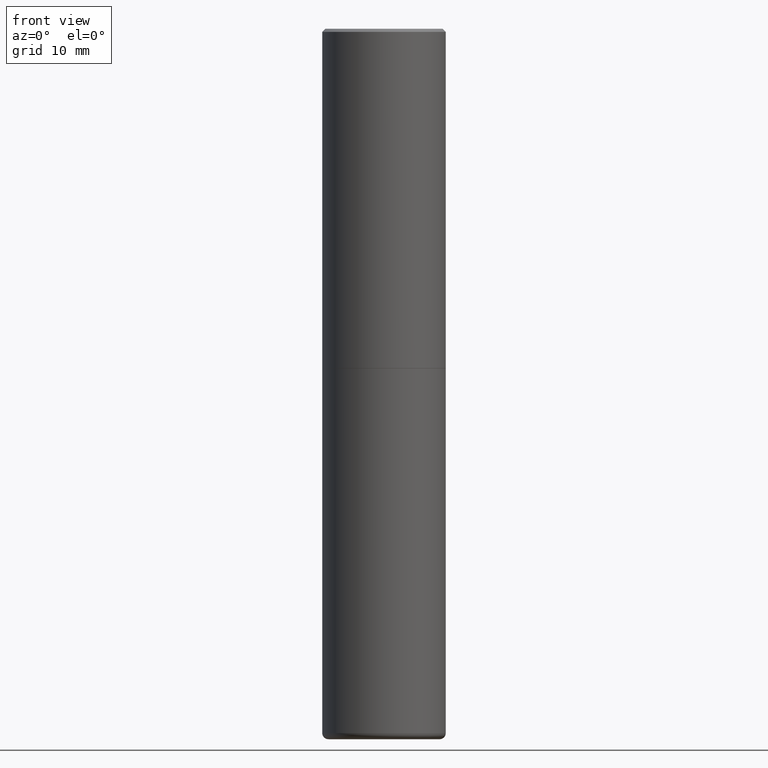
[diagram: clean part render]
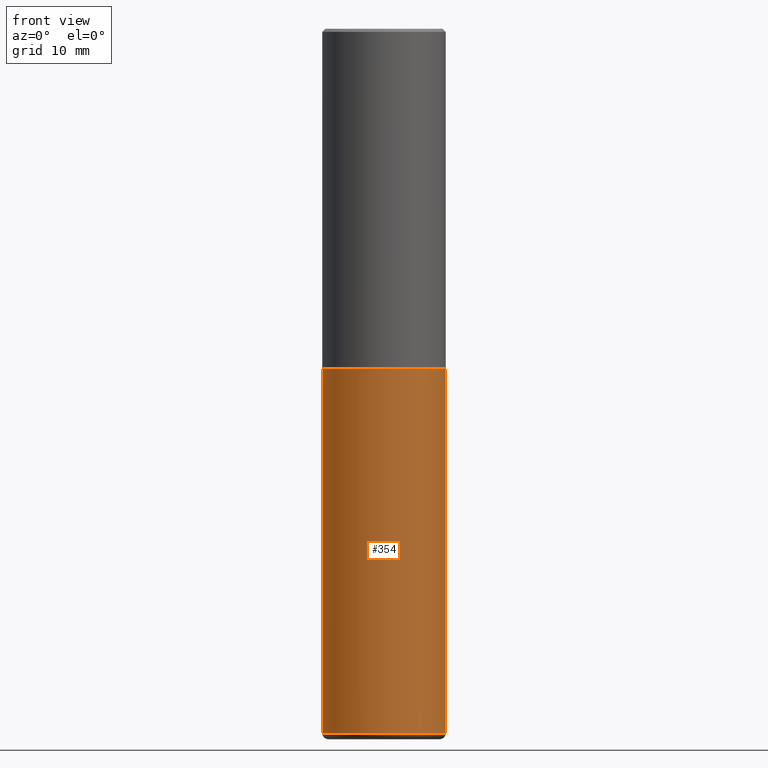
[diagram: same view with one face highlighted and labeled with its STEP entity id]
A machine part, front view. The second image highlights one B-rep face of the part: STEP entity #354.
In plain terms, the highlighted cylindrical surface (partial cylindrical patch) has radius 10 mm, axis along (-0, 0, 1).
Its self-contained STEP definition (entity closure, byte-faithful):
#16 = EDGE_CURVE ( 'NONE', #110, #223, #133, .T. ) ;
#26 = CYLINDRICAL_SURFACE ( 'NONE', #96, 0.3937000000000000499 ) ;
#33 = CIRCLE ( 'NONE', #95, 0.3937000000000000499 ) ;
#38 = CARTESIAN_POINT ( 'NONE',  ( 0.3937000000000002164, -1.841965895120088790E-14, -4.488199999999999079 ) ) ;
#48 = ORIENTED_EDGE ( 'NONE', *, *, #16, .T. ) ;
#62 = EDGE_CURVE ( 'NONE', #223, #409, #64, .T. ) ;
#64 = LINE ( 'NONE', #200, #358 ) ;
#95 = AXIS2_PLACEMENT_3D ( 'NONE', #373, #331, #241 ) ;
#96 = AXIS2_PLACEMENT_3D ( 'NONE', #288, #404, #150 ) ;
#110 = VERTEX_POINT ( 'NONE', #213 ) ;
#117 = AXIS2_PLACEMENT_3D ( 'NONE', #416, #262, #320 ) ;
#133 = CIRCLE ( 'NONE', #117, 0.3937000000000000499 ) ;
#145 = EDGE_CURVE ( 'NONE', #110, #155, #171, .T. ) ;
#150 = DIRECTION ( 'NONE',  ( 1.000000000000000000, -6.982962677686265922E-15, 4.876176775795935793E-29 ) ) ;
#151 = EDGE_LOOP ( 'NONE', ( #239, #48, #205, #216 ) ) ;
#155 = VERTEX_POINT ( 'NONE', #275 ) ;
#158 = EDGE_CURVE ( 'NONE', #155, #409, #33, .T. ) ;
#171 = LINE ( 'NONE', #204, #411 ) ;
#185 = FACE_OUTER_BOUND ( 'NONE', #151, .T. ) ;
#200 = CARTESIAN_POINT ( 'NONE',  ( 0.3937000000000000499, -2.749192406205083217E-15, 1.919750796630860172E-29 ) ) ;
#204 = CARTESIAN_POINT ( 'NONE',  ( -0.3937000000000000499, 2.797406750687514786E-15, -1.936584745033356735E-29 ) ) ;
#205 = ORIENTED_EDGE ( 'NONE', *, *, #62, .T. ) ;
#209 = CARTESIAN_POINT ( 'NONE',  ( 0.3937000000000000499, -1.030964609733602906E-14, -2.165399999999999547 ) ) ;
#213 = CARTESIAN_POINT ( 'NONE',  ( -0.3937000000000002164, -1.287305979430828753E-14, -4.488199999999999079 ) ) ;
#216 = ORIENTED_EDGE ( 'NONE', *, *, #158, .F. ) ;
#223 = VERTEX_POINT ( 'NONE', #38 ) ;
#239 = ORIENTED_EDGE ( 'NONE', *, *, #145, .F. ) ;
#241 = DIRECTION ( 'NONE',  ( 1.000000000000000000, -6.982962677686265133E-15, 0.000000000000000000 ) ) ;
#262 = DIRECTION ( 'NONE',  ( -2.445468806185136597E-29, 3.491481338843145583E-15, 1.000000000000000000 ) ) ;
#264 = DIRECTION ( 'NONE',  ( -2.445468806185136877E-29, 3.491481338843145188E-15, 1.000000000000000000 ) ) ;
#275 = CARTESIAN_POINT ( 'NONE',  ( -0.3937000000000000499, -8.818053367375859687E-15, -2.165399999999999547 ) ) ;
#277 = DIRECTION ( 'NONE',  ( -2.445468806185136877E-29, 3.491481338843145188E-15, 1.000000000000000000 ) ) ;
#288 = CARTESIAN_POINT ( 'NONE',  ( 0.000000000000000000, 0.000000000000000000, 0.000000000000000000 ) ) ;
#320 = DIRECTION ( 'NONE',  ( 1.000000000000000000, -6.982962677686262766E-15, 0.000000000000000000 ) ) ;
#331 = DIRECTION ( 'NONE',  ( -2.445468806185136597E-29, 3.491481338843145583E-15, 1.000000000000000000 ) ) ;
#354 = ADVANCED_FACE ( 'NONE', ( #185 ), #26, .T. ) ;
#358 = VECTOR ( 'NONE', #264, 39.37007874015748143 ) ;
#373 = CARTESIAN_POINT ( 'NONE',  ( 5.295418152913293224E-29, -7.560453691130945845E-15, -2.165399999999999547 ) ) ;
#404 = DIRECTION ( 'NONE',  ( -2.445468806185136597E-29, 3.491481338843145583E-15, 1.000000000000000000 ) ) ;
#409 = VERTEX_POINT ( 'NONE', #209 ) ;
#411 = VECTOR ( 'NONE', #277, 39.37007874015748143 ) ;
#416 = CARTESIAN_POINT ( 'NONE',  ( 1.097575309592012950E-28, -1.567046654499580152E-14, -4.488199999999999079 ) ) ;